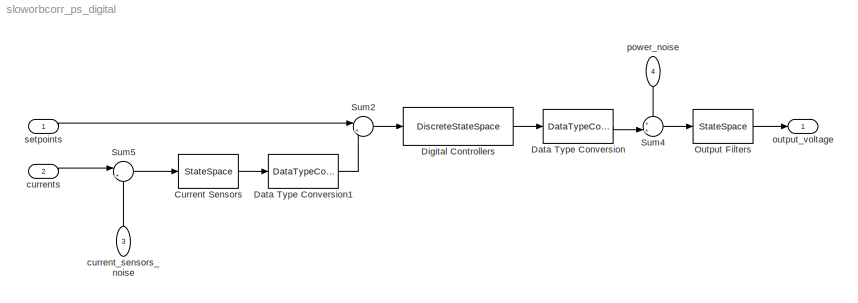
MODEL sloworbcorr_ps_digital
KIND model
BLOCK [StateSpace] Current Sensors
  A = simparam.pssens.a
  B = simparam.pssens.b
  C = simparam.pssens.c
  D = simparam.pssens.d
  SID = 7
BLOCK [DataTypeConversion] Data Type Conversion
  OutDataTypeStr = double
  RndMeth = Floor
  SID = 22
  SaturateOnIntegerOverflow = off
BLOCK [DataTypeConversion] Data Type Conversion1
  OutDataTypeStr = double
  RndMeth = Floor
  SID = 23
  SaturateOnIntegerOverflow = off
BLOCK [DiscreteStateSpace] Digital Controllers
  A = simparam.psctrl.a
  B = simparam.psctrl.b
  C = simparam.psctrl.c
  D = simparam.psctrl.d
  SID = 21
  SampleTime = simparam.psctrl.Ts
BLOCK [StateSpace] Output Filters
  A = simparam.psfilter.a
  B = simparam.psfilter.b
  C = simparam.psfilter.c
  D = simparam.psfilter.d
  SID = 12
BLOCK [Sum] Sum2
  IconShape = round
  InputSameDT = off
  Inputs = |+-
  OutDataTypeStr = Inherit: Inherit via internal rule
  Ports = [2, 1]
  SID = 14
  SaturateOnIntegerOverflow = off
BLOCK [Sum] Sum4
  IconShape = round
  InputSameDT = off
  Inputs = ++|
  OutDataTypeStr = Inherit: Inherit via internal rule
  Ports = [2, 1]
  SID = 15
  SaturateOnIntegerOverflow = off
BLOCK [Sum] Sum5
  IconShape = round
  InputSameDT = off
  Inputs = |++
  OutDataTypeStr = Inherit: Inherit via internal rule
  Ports = [2, 1]
  SID = 16
  SaturateOnIntegerOverflow = off
BLOCK [Inport] current_sensors_noise
  IconDisplay = Port number
  Port = 3
  SID = 4
BLOCK [Inport] currents
  IconDisplay = Port number
  Port = 2
  SID = 2
BLOCK [Outport] output_voltage
  IconDisplay = Port number
  SID = 19
BLOCK [Inport] power_noise
  IconDisplay = Port number
  Port = 4
  SID = 5
BLOCK [Inport] setpoints
  IconDisplay = Port number
  SID = 3
LINE Current Sensors:1 -> Data Type Conversion1:1
LINE Data Type Conversion1:1 -> Sum2:2
LINE Data Type Conversion:1 -> Sum4:2
LINE Digital Controllers:1 -> Data Type Conversion:1
LINE Output Filters:1 -> output_voltage:1
LINE Sum2:1 -> Digital Controllers:1
LINE Sum4:1 -> Output Filters:1
LINE Sum5:1 -> Current Sensors:1
LINE current_sensors_noise:1 -> Sum5:2
LINE currents:1 -> Sum5:1
LINE power_noise:1 -> Sum4:1
LINE setpoints:1 -> Sum2:1
